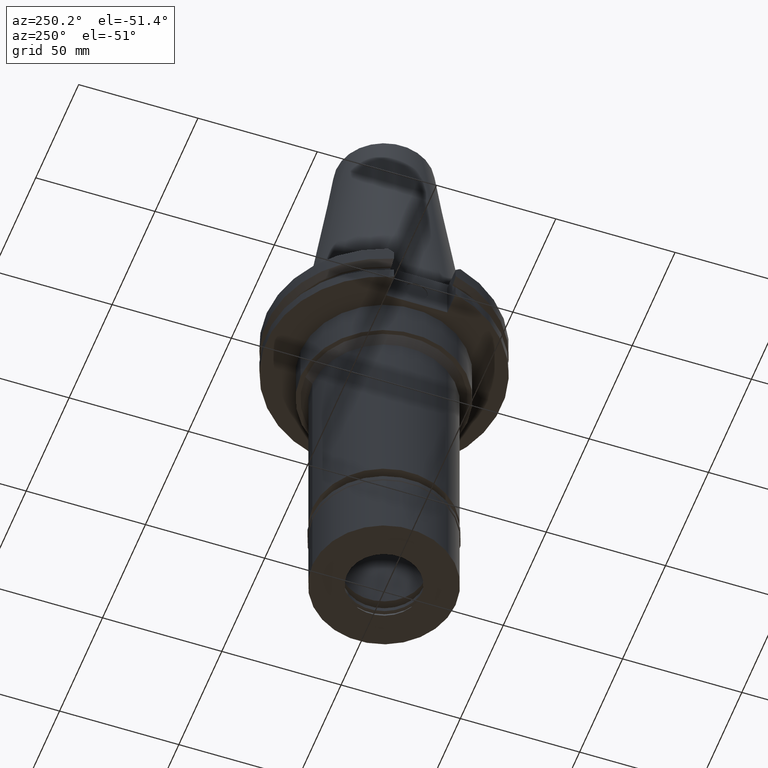
[diagram: clean part render]
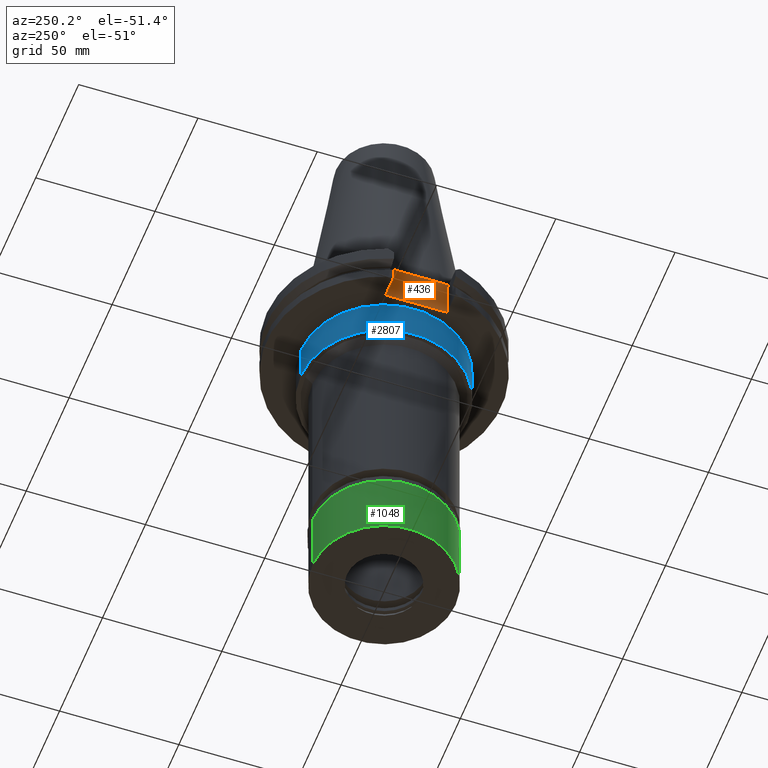
[diagram: same view with three faces highlighted in distinct colors, each labeled with its STEP entity id]
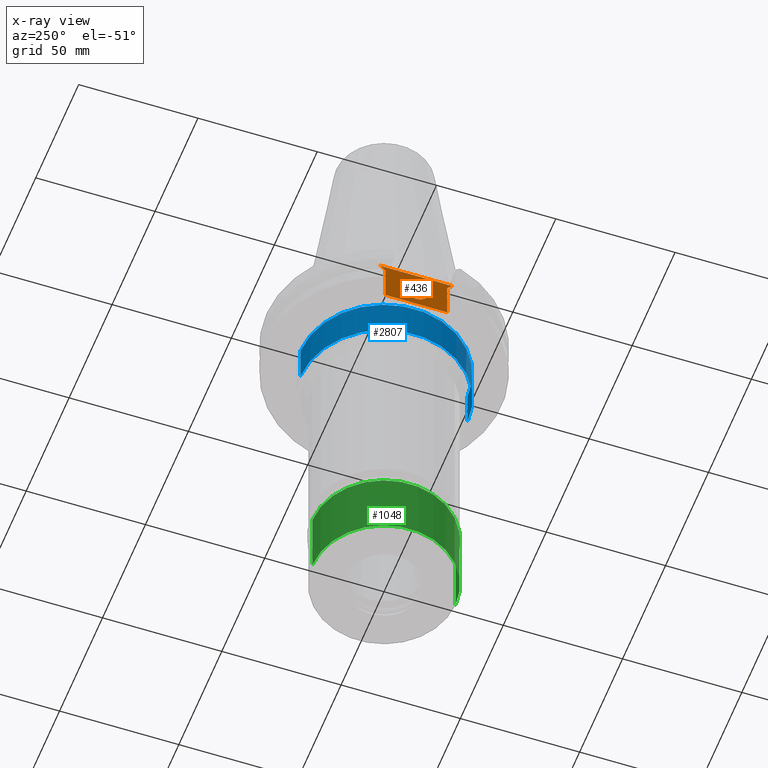
[diagram: x-ray of the same camera — body ghosted, the three highlighted faces saturated]
A machine part, auxiliary view with three faces highlighted in distinct colors.
The next image is the same camera in x-ray (body ghosted, the three faces saturated) — at least one of them is partly hidden behind the body in this view.
Their STEP definitions:

[orange] entity #436 — the highlighted planar face has unit normal (1, 0, 0).
#65 = DIRECTION ( 'NONE',  ( 0.0000000000000000000, 0.0000000000000000000, -1.000000000000000000 ) ) ;
#146 = CARTESIAN_POINT ( 'NONE',  ( -37.67999999999999972, 12.95500000000000007, -19.05000000000000071 ) ) ;
#155 = CARTESIAN_POINT ( 'NONE',  ( -37.67999999999999972, 15.15499999999999936, -1.500000000000000000 ) ) ;
#173 = CARTESIAN_POINT ( 'NONE',  ( -37.67999999999999972, -15.15499999999999936, -1.500000000000000000 ) ) ;
#347 = VERTEX_POINT ( 'NONE', #146 ) ;
#359 = CARTESIAN_POINT ( 'NONE',  ( -37.67999999999999972, 12.95500000000000007, -3.700000000000000178 ) ) ;
#411 = VERTEX_POINT ( 'NONE', #3119 ) ;
#436 = ADVANCED_FACE ( 'NONE', ( #739, #706 ), #1234, .F. ) ;
#485 = ORIENTED_EDGE ( 'NONE', *, *, #745, .T. ) ;
#496 = ORIENTED_EDGE ( 'NONE', *, *, #2032, .T. ) ;
#512 = CARTESIAN_POINT ( 'NONE',  ( -37.67999999999999972, 0.0000000000000000000, -6.417499999999999538 ) ) ;
#574 = CARTESIAN_POINT ( 'NONE',  ( -37.67999999999999972, 0.0000000000000000000, -11.18000000000000149 ) ) ;
#577 = CARTESIAN_POINT ( 'NONE',  ( -37.67999999999999972, 12.95500000000000007, -3.700000000000000178 ) ) ;
#602 = ORIENTED_EDGE ( 'NONE', *, *, #2542, .F. ) ;
#656 = AXIS2_PLACEMENT_3D ( 'NONE', #2934, #2695, #2679 ) ;
#706 = FACE_BOUND ( 'NONE', #795, .T. ) ;
#712 = VECTOR ( 'NONE', #65, 1000.000000000000000 ) ;
#739 = FACE_OUTER_BOUND ( 'NONE', #2749, .T. ) ;
#745 = EDGE_CURVE ( 'NONE', #1770, #347, #2079, .T. ) ;
#748 = VECTOR ( 'NONE', #2159, 1000.000000000000114 ) ;
#795 = EDGE_LOOP ( 'NONE', ( #3007, #2993 ) ) ;
#855 = VECTOR ( 'NONE', #2973, 1000.000000000000114 ) ;
#865 = DIRECTION ( 'NONE',  ( 0.0000000000000000000, 0.0000000000000000000, 1.000000000000000000 ) ) ;
#956 = CARTESIAN_POINT ( 'NONE',  ( -37.67999999999999972, -12.95500000000000007, -3.700000000000000178 ) ) ;
#963 = VERTEX_POINT ( 'NONE', #956 ) ;
#965 = VECTOR ( 'NONE', #1906, 1000.000000000000000 ) ;
#984 = LINE ( 'NONE', #1935, #855 ) ;
#1035 = DIRECTION ( 'NONE',  ( -1.000000000000000000, 0.0000000000000000000, 0.0000000000000000000 ) ) ;
#1121 = VERTEX_POINT ( 'NONE', #155 ) ;
#1160 = ORIENTED_EDGE ( 'NONE', *, *, #2734, .F. ) ;
#1190 = EDGE_CURVE ( 'NONE', #2742, #963, #1845, .T. ) ;
#1234 = PLANE ( 'NONE',  #656 ) ;
#1319 = CIRCLE ( 'NONE', #1689, 4.762500000000000178 ) ;
#1425 = ORIENTED_EDGE ( 'NONE', *, *, #1190, .T. ) ;
#1432 = EDGE_CURVE ( 'NONE', #2435, #1527, #2330, .T. ) ;
#1510 = CARTESIAN_POINT ( 'NONE',  ( -37.67999999999999972, 0.0000000000000000000, -11.18000000000000149 ) ) ;
#1527 = VERTEX_POINT ( 'NONE', #512 ) ;
#1689 = AXIS2_PLACEMENT_3D ( 'NONE', #574, #1035, #2281 ) ;
#1721 = AXIS2_PLACEMENT_3D ( 'NONE', #1510, #1965, #2291 ) ;
#1744 = DIRECTION ( 'NONE',  ( 0.0000000000000000000, 1.000000000000000000, 0.0000000000000000000 ) ) ;
#1756 = LINE ( 'NONE', #2953, #2940 ) ;
#1770 = VERTEX_POINT ( 'NONE', #359 ) ;
#1799 = CARTESIAN_POINT ( 'NONE',  ( -37.67999999999999972, 0.0000000000000000000, -15.94249999999999901 ) ) ;
#1845 = LINE ( 'NONE', #2803, #1869 ) ;
#1869 = VECTOR ( 'NONE', #865, 1000.000000000000000 ) ;
#1906 = DIRECTION ( 'NONE',  ( 0.0000000000000000000, 1.000000000000000000, 0.0000000000000000000 ) ) ;
#1925 = LINE ( 'NONE', #173, #748 ) ;
#1935 = CARTESIAN_POINT ( 'NONE',  ( -37.67999999999999972, 12.95500000000000007, -3.700000000000000178 ) ) ;
#1965 = DIRECTION ( 'NONE',  ( -1.000000000000000000, 0.0000000000000000000, 0.0000000000000000000 ) ) ;
#2032 = EDGE_CURVE ( 'NONE', #411, #1121, #1756, .T. ) ;
#2079 = LINE ( 'NONE', #577, #712 ) ;
#2159 = DIRECTION ( 'NONE',  ( 0.0000000000000000000, 0.7071067811865474617, -0.7071067811865474617 ) ) ;
#2281 = DIRECTION ( 'NONE',  ( 0.0000000000000000000, 0.0000000000000000000, 1.000000000000000000 ) ) ;
#2291 = DIRECTION ( 'NONE',  ( 0.0000000000000000000, 0.0000000000000000000, -1.000000000000000000 ) ) ;
#2330 = CIRCLE ( 'NONE', #1721, 4.762500000000001066 ) ;
#2369 = LINE ( 'NONE', #2603, #965 ) ;
#2378 = EDGE_CURVE ( 'NONE', #1527, #2435, #1319, .T. ) ;
#2435 = VERTEX_POINT ( 'NONE', #1799 ) ;
#2542 = EDGE_CURVE ( 'NONE', #411, #963, #1925, .T. ) ;
#2603 = CARTESIAN_POINT ( 'NONE',  ( -37.67999999999999972, -12.95500000000000007, -19.05000000000000071 ) ) ;
#2665 = CARTESIAN_POINT ( 'NONE',  ( -37.67999999999999972, -12.95500000000000007, -19.05000000000000071 ) ) ;
#2679 = DIRECTION ( 'NONE',  ( 0.0000000000000000000, 1.000000000000000000, 0.0000000000000000000 ) ) ;
#2695 = DIRECTION ( 'NONE',  ( 1.000000000000000000, 0.0000000000000000000, 0.0000000000000000000 ) ) ;
#2734 = EDGE_CURVE ( 'NONE', #1770, #1121, #984, .T. ) ;
#2742 = VERTEX_POINT ( 'NONE', #2665 ) ;
#2749 = EDGE_LOOP ( 'NONE', ( #1425, #602, #496, #1160, #485, #2758 ) ) ;
#2758 = ORIENTED_EDGE ( 'NONE', *, *, #3156, .F. ) ;
#2803 = CARTESIAN_POINT ( 'NONE',  ( -37.67999999999999972, -12.95500000000000007, -19.05000000000000071 ) ) ;
#2934 = CARTESIAN_POINT ( 'NONE',  ( -37.67999999999999972, 0.0000000000000000000, 0.0000000000000000000 ) ) ;
#2940 = VECTOR ( 'NONE', #1744, 1000.000000000000000 ) ;
#2953 = CARTESIAN_POINT ( 'NONE',  ( -37.67999999999999972, -15.15499999999999936, -1.500000000000000000 ) ) ;
#2973 = DIRECTION ( 'NONE',  ( 0.0000000000000000000, 0.7071067811865474617, 0.7071067811865474617 ) ) ;
#2993 = ORIENTED_EDGE ( 'NONE', *, *, #2378, .F. ) ;
#3007 = ORIENTED_EDGE ( 'NONE', *, *, #1432, .F. ) ;
#3119 = CARTESIAN_POINT ( 'NONE',  ( -37.67999999999999972, -15.15499999999999936, -1.500000000000000000 ) ) ;
#3156 = EDGE_CURVE ( 'NONE', #2742, #347, #2369, .T. ) ;

[blue] entity #2807 — the highlighted cylindrical surface (partial cylindrical patch) has radius 34.925 mm, axis along (0, 0, -1).
#57 = EDGE_CURVE ( 'NONE', #1446, #627, #1509, .T. ) ;
#92 = DIRECTION ( 'NONE',  ( 0.0000000000000000000, 0.0000000000000000000, -1.000000000000000000 ) ) ;
#108 = DIRECTION ( 'NONE',  ( 0.0000000000000000000, -1.000000000000000000, 0.0000000000000000000 ) ) ;
#172 = DIRECTION ( 'NONE',  ( 0.0000000000000000000, 0.0000000000000000000, -1.000000000000000000 ) ) ;
#251 = DIRECTION ( 'NONE',  ( 0.0000000000000000000, 1.000000000000000000, 0.0000000000000000000 ) ) ;
#478 = EDGE_CURVE ( 'NONE', #627, #1113, #2164, .T. ) ;
#536 = CARTESIAN_POINT ( 'NONE',  ( 0.0000000000000000000, 34.92499999999999716, -19.05000000000000071 ) ) ;
#541 = CARTESIAN_POINT ( 'NONE',  ( 0.0000000000000000000, 1.392729572329999894E-14, -19.05000000000000071 ) ) ;
#627 = VERTEX_POINT ( 'NONE', #1551 ) ;
#648 = LINE ( 'NONE', #2390, #1515 ) ;
#713 = FACE_OUTER_BOUND ( 'NONE', #2010, .T. ) ;
#977 = DIRECTION ( 'NONE',  ( 0.0000000000000000000, 0.0000000000000000000, 1.000000000000000000 ) ) ;
#1075 = CARTESIAN_POINT ( 'NONE',  ( 0.0000000000000000000, -34.92499999999999716, -35.00000000000000000 ) ) ;
#1113 = VERTEX_POINT ( 'NONE', #1075 ) ;
#1164 = CIRCLE ( 'NONE', #2706, 34.92499999999999716 ) ;
#1255 = CARTESIAN_POINT ( 'NONE',  ( 0.0000000000000000000, 1.392729572329999894E-14, 113.7250000000000085 ) ) ;
#1282 = DIRECTION ( 'NONE',  ( 0.0000000000000000000, 0.0000000000000000000, -1.000000000000000000 ) ) ;
#1414 = EDGE_CURVE ( 'NONE', #1477, #1113, #648, .T. ) ;
#1431 = ORIENTED_EDGE ( 'NONE', *, *, #1414, .F. ) ;
#1446 = VERTEX_POINT ( 'NONE', #536 ) ;
#1451 = VECTOR ( 'NONE', #1282, 1000.000000000000000 ) ;
#1477 = VERTEX_POINT ( 'NONE', #2019 ) ;
#1481 = DIRECTION ( 'NONE',  ( 0.0000000000000000000, -1.000000000000000000, 0.0000000000000000000 ) ) ;
#1509 = LINE ( 'NONE', #2476, #1451 ) ;
#1515 = VECTOR ( 'NONE', #172, 1000.000000000000000 ) ;
#1551 = CARTESIAN_POINT ( 'NONE',  ( 0.0000000000000000000, 34.92499999999999716, -35.00000000000000000 ) ) ;
#1720 = DIRECTION ( 'NONE',  ( 0.0000000000000000000, 0.0000000000000000000, -1.000000000000000000 ) ) ;
#1723 = ORIENTED_EDGE ( 'NONE', *, *, #478, .T. ) ;
#1976 = CARTESIAN_POINT ( 'NONE',  ( 0.0000000000000000000, 1.392729572329999894E-14, -35.00000000000000000 ) ) ;
#1997 = ORIENTED_EDGE ( 'NONE', *, *, #57, .T. ) ;
#2010 = EDGE_LOOP ( 'NONE', ( #1723, #1431, #2797, #1997 ) ) ;
#2019 = CARTESIAN_POINT ( 'NONE',  ( 0.0000000000000000000, -34.92499999999999716, -19.05000000000000071 ) ) ;
#2164 = CIRCLE ( 'NONE', #2521, 34.92499999999999716 ) ;
#2230 = CYLINDRICAL_SURFACE ( 'NONE', #2554, 34.92499999999999716 ) ;
#2352 = EDGE_CURVE ( 'NONE', #1477, #1446, #1164, .T. ) ;
#2390 = CARTESIAN_POINT ( 'NONE',  ( 0.0000000000000000000, -34.92499999999999716, -19.05000000000000071 ) ) ;
#2476 = CARTESIAN_POINT ( 'NONE',  ( 0.0000000000000000000, 34.92499999999999716, -19.05000000000000071 ) ) ;
#2521 = AXIS2_PLACEMENT_3D ( 'NONE', #1976, #977, #251 ) ;
#2554 = AXIS2_PLACEMENT_3D ( 'NONE', #1255, #1720, #1481 ) ;
#2706 = AXIS2_PLACEMENT_3D ( 'NONE', #541, #92, #108 ) ;
#2797 = ORIENTED_EDGE ( 'NONE', *, *, #2352, .T. ) ;
#2807 = ADVANCED_FACE ( 'NONE', ( #713 ), #2230, .T. ) ;

[green] entity #1048 — the highlighted cylindrical surface (partial cylindrical patch) has radius 30 mm, axis along (0, 0, -1).
#3 = CIRCLE ( 'NONE', #2278, 30.00000000000000000 ) ;
#38 = CARTESIAN_POINT ( 'NONE',  ( 0.0000000000000000000, -30.00000000000000000, -2.299999999999999822 ) ) ;
#185 = VERTEX_POINT ( 'NONE', #2102 ) ;
#229 = FACE_OUTER_BOUND ( 'NONE', #3028, .T. ) ;
#403 = ORIENTED_EDGE ( 'NONE', *, *, #2277, .F. ) ;
#451 = DIRECTION ( 'NONE',  ( 0.0000000000000000000, 0.0000000000000000000, -1.000000000000000000 ) ) ;
#849 = CARTESIAN_POINT ( 'NONE',  ( 0.0000000000000000000, 0.0000000000000000000, -2.299999999999999822 ) ) ;
#888 = EDGE_CURVE ( 'NONE', #3115, #185, #1289, .T. ) ;
#916 = CARTESIAN_POINT ( 'NONE',  ( 0.0000000000000000000, 30.00000000000000000, -2.299999999999999822 ) ) ;
#1007 = CYLINDRICAL_SURFACE ( 'NONE', #2225, 30.00000000000000000 ) ;
#1048 = ADVANCED_FACE ( 'NONE', ( #229 ), #1007, .T. ) ;
#1129 = EDGE_CURVE ( 'NONE', #2921, #2909, #3, .T. ) ;
#1213 = VECTOR ( 'NONE', #1768, 1000.000000000000000 ) ;
#1289 = CIRCLE ( 'NONE', #1663, 30.00000000000000000 ) ;
#1337 = CARTESIAN_POINT ( 'NONE',  ( 0.0000000000000000000, 30.00000000000000000, -2.299999999999999822 ) ) ;
#1338 = DIRECTION ( 'NONE',  ( 0.0000000000000000000, -1.000000000000000000, 0.0000000000000000000 ) ) ;
#1373 = LINE ( 'NONE', #916, #2962 ) ;
#1380 = DIRECTION ( 'NONE',  ( 0.0000000000000000000, 0.0000000000000000000, 1.000000000000000000 ) ) ;
#1399 = DIRECTION ( 'NONE',  ( 0.0000000000000000000, 1.000000000000000000, 0.0000000000000000000 ) ) ;
#1517 = LINE ( 'NONE', #2248, #1213 ) ;
#1663 = AXIS2_PLACEMENT_3D ( 'NONE', #2625, #1380, #1399 ) ;
#1768 = DIRECTION ( 'NONE',  ( 0.0000000000000000000, 0.0000000000000000000, -1.000000000000000000 ) ) ;
#1819 = CARTESIAN_POINT ( 'NONE',  ( 0.0000000000000000000, 0.0000000000000000000, 0.0000000000000000000 ) ) ;
#1878 = DIRECTION ( 'NONE',  ( 0.0000000000000000000, 0.0000000000000000000, -1.000000000000000000 ) ) ;
#1909 = DIRECTION ( 'NONE',  ( 0.0000000000000000000, 0.0000000000000000000, -1.000000000000000000 ) ) ;
#2102 = CARTESIAN_POINT ( 'NONE',  ( 0.0000000000000000000, -30.00000000000000000, -30.80000000000000071 ) ) ;
#2169 = ORIENTED_EDGE ( 'NONE', *, *, #2618, .T. ) ;
#2225 = AXIS2_PLACEMENT_3D ( 'NONE', #1819, #451, #3183 ) ;
#2248 = CARTESIAN_POINT ( 'NONE',  ( 0.0000000000000000000, -30.00000000000000000, -2.299999999999999822 ) ) ;
#2277 = EDGE_CURVE ( 'NONE', #2921, #185, #1517, .T. ) ;
#2278 = AXIS2_PLACEMENT_3D ( 'NONE', #849, #1878, #1338 ) ;
#2415 = ORIENTED_EDGE ( 'NONE', *, *, #1129, .T. ) ;
#2618 = EDGE_CURVE ( 'NONE', #2909, #3115, #1373, .T. ) ;
#2625 = CARTESIAN_POINT ( 'NONE',  ( 0.0000000000000000000, 0.0000000000000000000, -30.80000000000000071 ) ) ;
#2632 = CARTESIAN_POINT ( 'NONE',  ( 0.0000000000000000000, 30.00000000000000000, -30.80000000000000071 ) ) ;
#2838 = ORIENTED_EDGE ( 'NONE', *, *, #888, .T. ) ;
#2909 = VERTEX_POINT ( 'NONE', #1337 ) ;
#2921 = VERTEX_POINT ( 'NONE', #38 ) ;
#2962 = VECTOR ( 'NONE', #1909, 1000.000000000000000 ) ;
#3028 = EDGE_LOOP ( 'NONE', ( #2838, #403, #2415, #2169 ) ) ;
#3115 = VERTEX_POINT ( 'NONE', #2632 ) ;
#3183 = DIRECTION ( 'NONE',  ( 0.0000000000000000000, -1.000000000000000000, 0.0000000000000000000 ) ) ;